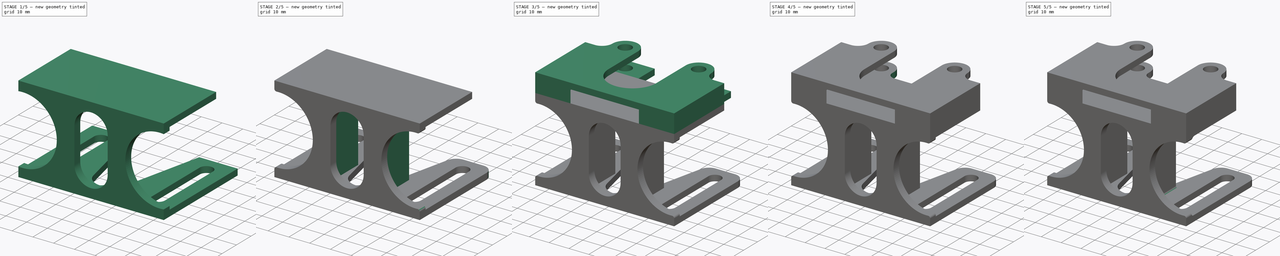
[diagram: build sequence overview — one tinted view per stage of 5, left to right]
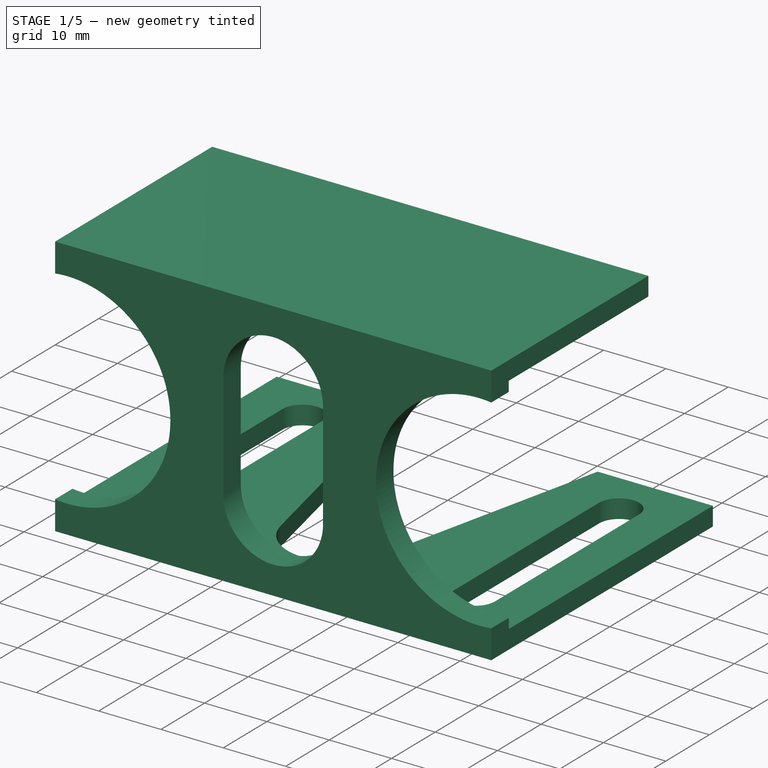
[diagram: stage 1 of 5 — iso view after this stage's code; geometry added in this stage tinted green]
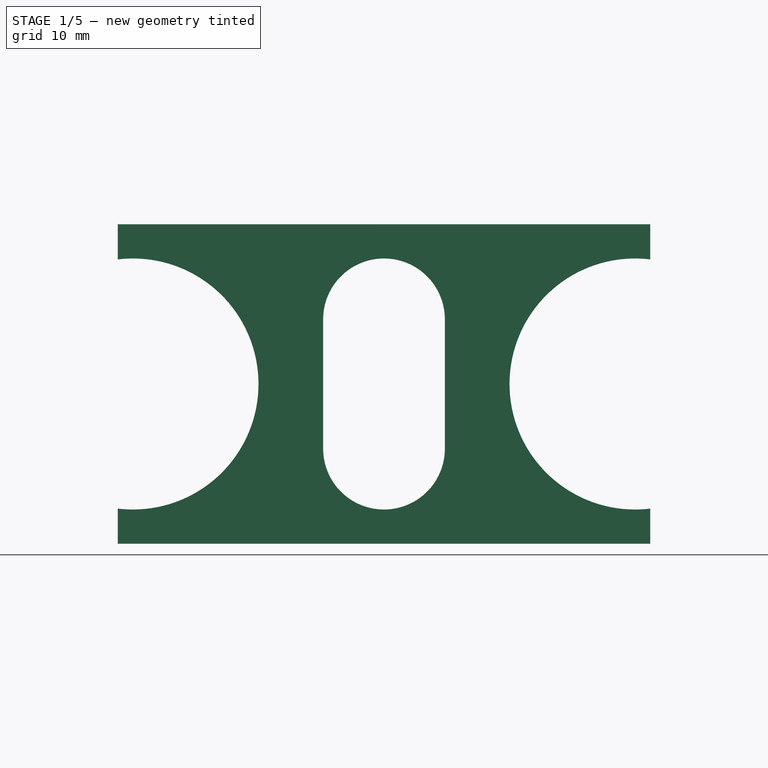
[diagram: stage 1 of 5 — front view after this stage's code; geometry added in this stage tinted green]
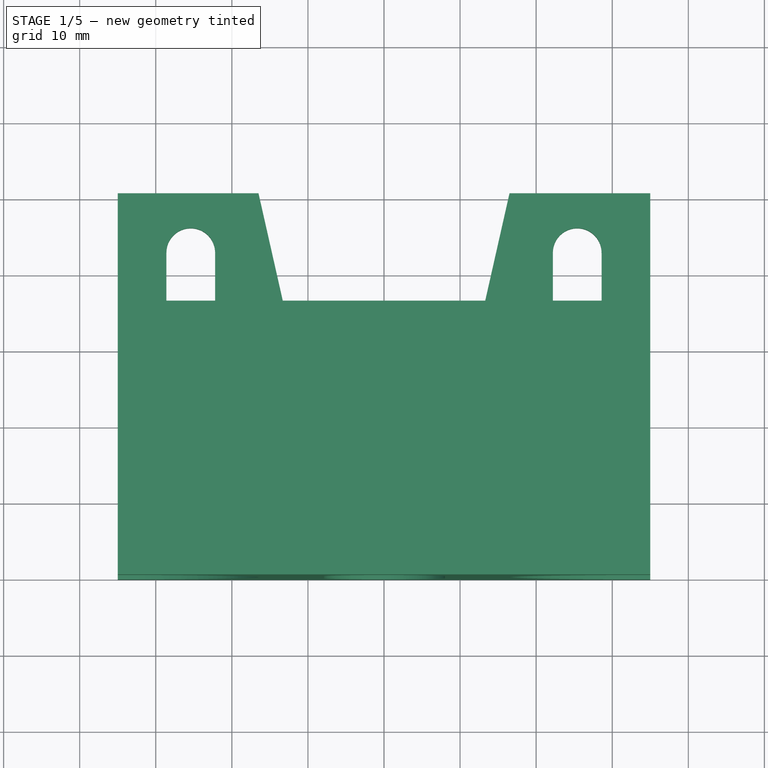
[diagram: stage 1 of 5 — top view after this stage's code; geometry added in this stage tinted green]
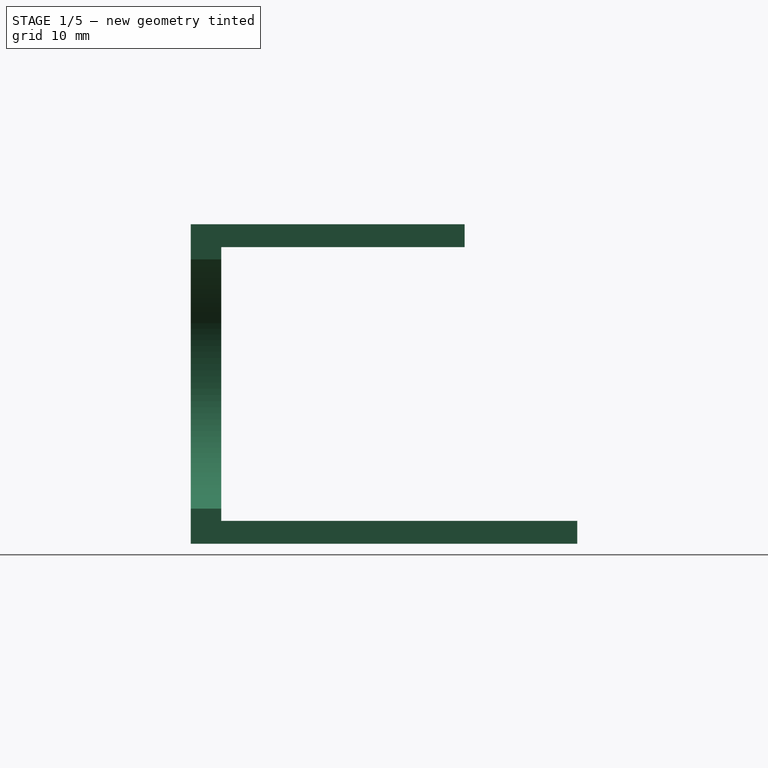
[diagram: stage 1 of 5 — right view after this stage's code; geometry added in this stage tinted green]
FCSTD DOCUMENT  (FreeCAD 0.19R24291 (Git))
Label: Stand_PS3Eye
Comment: Stand for PS3 Camera Case
License: Creative Commons Attribution-NonCommercial-ShareAlike
LicenseURL: http://creativecommons.org/licenses/by-nc-sa/4.0/
objects: Sketcher::SketchObject×9, PartDesign::Fillet×7, PartDesign::Pad×5, PartDesign::Pocket×4, PartDesign::CoordinateSystem×2, PartDesign::Body×1
note: 44 computed .brp shape members not serialized (recipe doc carries the construction recipe); baked Part::Feature solids carry a one-line shape summary decoded from their .brp

FEATURE [Sketcher::SketchObject] Sketch
  FullyConstrained = true
  MapMode = 5
  Placement = pos=(0,0,0) rot=(0.57735,0.57735,0.57735;2.0944rad)
  Support = -> [YZ_Plane]
  sketch-geometry (8):
    g0: LineSegment StartX=30.8 StartY=-18 StartZ=0 EndX=30.8 EndY=-21 EndZ=0
    g1: LineSegment StartX=30.8 StartY=-21 StartZ=0 EndX=-20 EndY=-21 EndZ=0
    g2: LineSegment StartX=-20 StartY=-21 StartZ=0 EndX=-20 EndY=21 EndZ=0
    g3: LineSegment StartX=-20 StartY=21 StartZ=0 EndX=16 EndY=21 EndZ=0
    g4: LineSegment StartX=16 StartY=21 StartZ=0 EndX=16 EndY=18 EndZ=0
    g5: LineSegment StartX=16 StartY=18 StartZ=0 EndX=-16 EndY=18 EndZ=0
    g6: LineSegment StartX=-16 StartY=18 StartZ=0 EndX=-16 EndY=-18 EndZ=0
    g7: LineSegment StartX=-16 StartY=-18 StartZ=0 EndX=30.8 EndY=-18 EndZ=0
  constraints (22):
    c: Vertical(g0)
    c: Coincident(g0,g1)
    c: Horizontal(g1)
    c: Coincident(g1,g2)
    c: Vertical(g2)
    c: Coincident(g2,g3)
    c: Horizontal(g3)
    c: Coincident(g3,g4)
    c: Vertical(g4)
    c: Coincident(g4,g5)
    c: Coincident(g5,g6)
    c: Coincident(g6,g7)
    c: Coincident(g7,g0)
    c: Horizontal(g7)
    c: Distance(g0) = 3
    c: Distance(g4) = 3
    c: DistanceX(g2,g5) = 4
    c: Distance(g5) = 32
    c: Distance(g2) = 42
    c: Distance(g1) = 50.8
    c: Symmetric(g5,g6,g-1)
    c: Symmetric(g4,g5,g-2)
FEATURE [PartDesign::Pad] Pad
  Direction = (1,1,1)
  Length = 70
  Length2 = 100
  Midplane = true
  Placement = pos=(0,0,0) rot=(0.57735,0.57735,0.57735;2.0944rad)
  Profile = -> Sketch
  Type = 0
FEATURE [Sketcher::SketchObject] Sketch001
  ExternalGeometry = -> [Pad]
  FullyConstrained = true
  MapMode = 5
  Placement = pos=(-8.8e-15,-20,4.4e-15) rot=(-0.57735,-0.57735,0.57735;4.18879rad)
  Support = -> [Pad]
  sketch-geometry (8):
    g0: Circle CenterX=0 CenterY=33 CenterZ=0 NormalX=0 NormalY=0 NormalZ=1 AngleXU=0 Radius=16.5
    g1: Circle CenterX=0 CenterY=-33 CenterZ=0 NormalX=0 NormalY=0 NormalZ=1 AngleXU=0 Radius=16.5
    g2: ArcOfCircle CenterX=-8.5 CenterY=0 CenterZ=0 NormalX=0 NormalY=0 NormalZ=1 AngleXU=0 Radius=8 StartAngle=1.5708 EndAngle=4.71239
    g3: ArcOfCircle CenterX=8.5 CenterY=1e-16 CenterZ=0 NormalX=0 NormalY=0 NormalZ=1 AngleXU=0 Radius=8 StartAngle=4.71239 EndAngle=7.85398
    g4: LineSegment StartX=-8.5 StartY=-8 StartZ=0 EndX=8.5 EndY=-8 EndZ=0
    g5: LineSegment StartX=-8.5 StartY=8 StartZ=0 EndX=8.5 EndY=8 EndZ=0
    g6: LineSegment StartX=-16.5 StartY=2.21473e-05 StartZ=0 EndX=-16.5 EndY=10 EndZ=0
    g7: LineSegment StartX=16.5 StartY=0 StartZ=0 EndX=16.5 EndY=10 EndZ=0
  constraints (22):
    c: Diameter(g0) = 33
    c: Diameter(g1) = 33
    c: PointOnObject(g1,g-2)
    c: Tangent(g2,g5) = 1.5708
    c: Tangent(g2,g4) = -1.5708
    c: Tangent(g4,g3) = -1.5708
    c: Tangent(g5,g3) = 1.5708
    c: Horizontal(g4)
    c: PointOnObject(g2,g-1)
    c: Symmetric(g2,g3,g-2)
    c: PointOnObject(g6,g2)
    c: Vertical(g6)
    c: Tangent(g6,g2)
    c: PointOnObject(g7,g3)
    c: Vertical(g7)
    c: PointOnObject(g7,g-1)
    c: Diameter(g3) = 16
    c: DistanceX(g6,g7) = 33
    c: Distance(g-1,g1) = 33
    c: Symmetric(g0,g1,g-1)
    c: Distance(g7) = 10
    c: Distance(g6) = 10
FEATURE [PartDesign::Pocket] Pocket
  BaseFeature = -> Pad
  Length = 5
  Length2 = 100
  Placement = pos=(0,0,0) rot=(0.57735,0.57735,0.57735;2.0944rad)
  Profile = -> Sketch001
  Type = 0
FEATURE [Sketcher::SketchObject] Sketch002
  ExternalGeometry = -> [Pocket]
  FullyConstrained = true
  MapMode = 5
  Placement = pos=(5.9e-15,-9.2e-15,-21) rot=(0.707107,0.707107,0;3.14159rad)
  Support = -> [Pocket]
  sketch-geometry (13):
    g0: ArcOfCircle CenterX=-10 CenterY=-25.4 CenterZ=0 NormalX=0 NormalY=0 NormalZ=1 AngleXU=0 Radius=3.2 StartAngle=1.5708 EndAngle=4.71239
    g1: ArcOfCircle CenterX=23 CenterY=-25.4 CenterZ=0 NormalX=0 NormalY=0 NormalZ=1 AngleXU=0 Radius=3.2 StartAngle=4.71239 EndAngle=7.85398
    g2: LineSegment StartX=-10 StartY=-28.6 StartZ=0 EndX=23 EndY=-28.6 EndZ=0
    g3: LineSegment StartX=-10 StartY=-22.2 StartZ=0 EndX=23 EndY=-22.2 EndZ=0
    g4: ArcOfCircle CenterX=-10 CenterY=25.4 CenterZ=0 NormalX=0 NormalY=0 NormalZ=1 AngleXU=0 Radius=3.2 StartAngle=1.5708 EndAngle=4.71239
    g5: ArcOfCircle CenterX=23 CenterY=25.4 CenterZ=0 NormalX=0 NormalY=0 NormalZ=1 AngleXU=0 Radius=3.2 StartAngle=4.71239 EndAngle=7.85398
    g6: LineSegment StartX=-10 StartY=22.2 StartZ=0 EndX=23 EndY=22.2 EndZ=0
    g7: LineSegment StartX=-10 StartY=28.6 StartZ=0 EndX=23 EndY=28.6 EndZ=0
    g8: ArcOfCircle CenterX=-4.9982 CenterY=0 CenterZ=0 NormalX=0 NormalY=0 NormalZ=1 AngleXU=0 Radius=8.2018 StartAngle=1.79309 EndAngle=4.4901
    g9: ArcOfCircle CenterX=34.5294 CenterY=-1.7e-15 CenterZ=0 NormalX=0 NormalY=0 NormalZ=1 AngleXU=0 Radius=16.9162 StartAngle=4.4901 EndAngle=8.07627
    g10: LineSegment StartX=-6.8064 StartY=-8 StartZ=0 EndX=30.8 EndY=-16.5 EndZ=0
    g11: LineSegment StartX=-6.8064 StartY=8 StartZ=0 EndX=30.8 EndY=16.5 EndZ=0
    g12: LineSegment StartX=-13.2 StartY=25.4 StartZ=0 EndX=-13.2 EndY=-25.4 EndZ=0
  constraints (33):
    c: Tangent(g0,g3) = 1.5708
    c: Tangent(g0,g2) = -1.5708
    c: Tangent(g2,g1) = -1.5708
    c: Tangent(g3,g1) = 1.5708
    c: Horizontal(g2)
    c: Equal(g0,g1)
    c: Tangent(g4,g7) = 1.5708
    c: Tangent(g4,g6) = -1.5708
    c: Tangent(g6,g5) = -1.5708
    c: Tangent(g7,g5) = 1.5708
    c: Horizontal(g6)
    c: Equal(g4,g5)
    c: DistanceY(g0,g4) = 50.8
    c: Symmetric(g4,g0,g-1)
    c: Distance(g5,g5) = 6.4
    c: Distance(g1,g1) = 6.4
    c: Distance(g6) = 33
    c: Distance(g3) = 33
    c: DistanceX(g-3,g4) = 10
    c: Tangent(g8,g11) = 1.5708
    c: Tangent(g8,g10) = -1.5708
    c: Tangent(g10,g9) = -1.5708
    c: Tangent(g11,g9) = 1.5708
    c: PointOnObject(g8,g-1)
    c: Vertical(g8,g8)
    c: PointOnObject(g12,g4)
    c: PointOnObject(g12,g0)
    c: Vertical(g12)
    c: Tangent(g12,g4)
    c: Tangent(g8,g12)
    c: PointOnObject(g9,g-4)
    c: Distance(g8,g8) = 16
    c: Distance(g9,g9) = 33
FEATURE [PartDesign::Pocket] Pocket001
  BaseFeature = -> Pocket
  Length = 5
  Length2 = 100
  Placement = pos=(0,0,0) rot=(0.57735,0.57735,0.57735;2.0944rad)
  Profile = -> Sketch002
  Type = 0
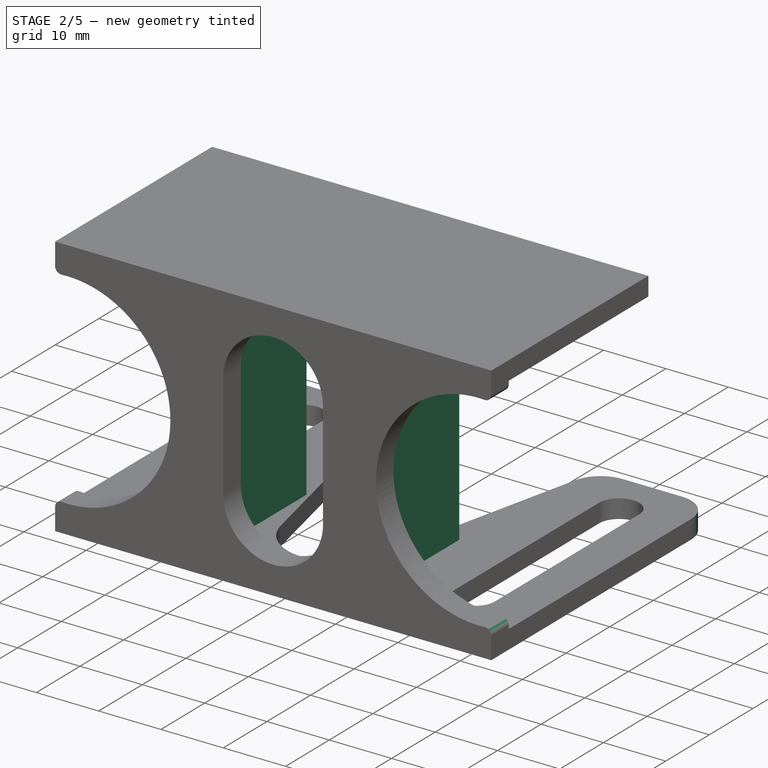
[diagram: stage 2 of 5 — iso view after this stage's code; geometry added in this stage tinted green]
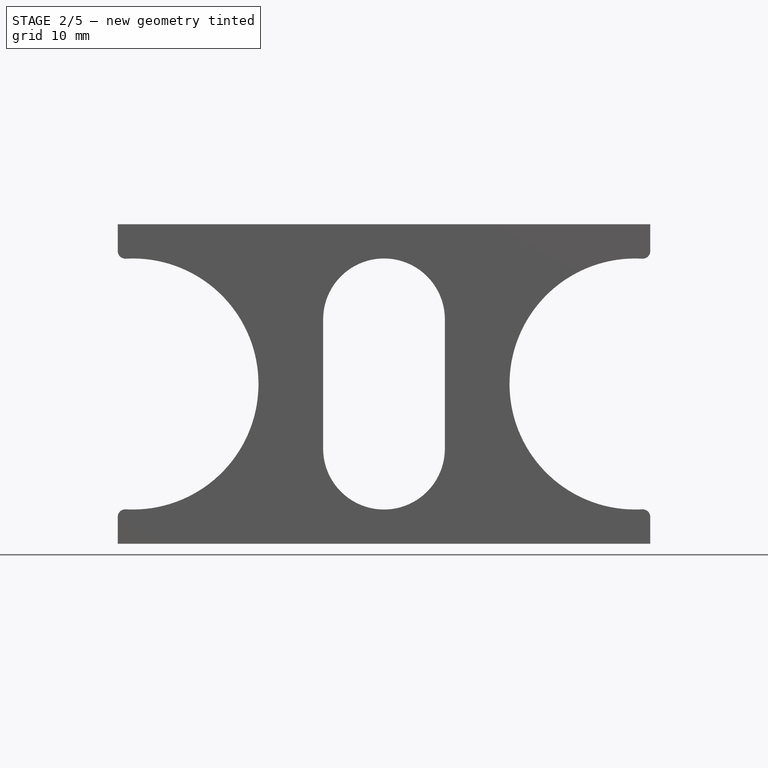
[diagram: stage 2 of 5 — front view after this stage's code; geometry added in this stage tinted green]
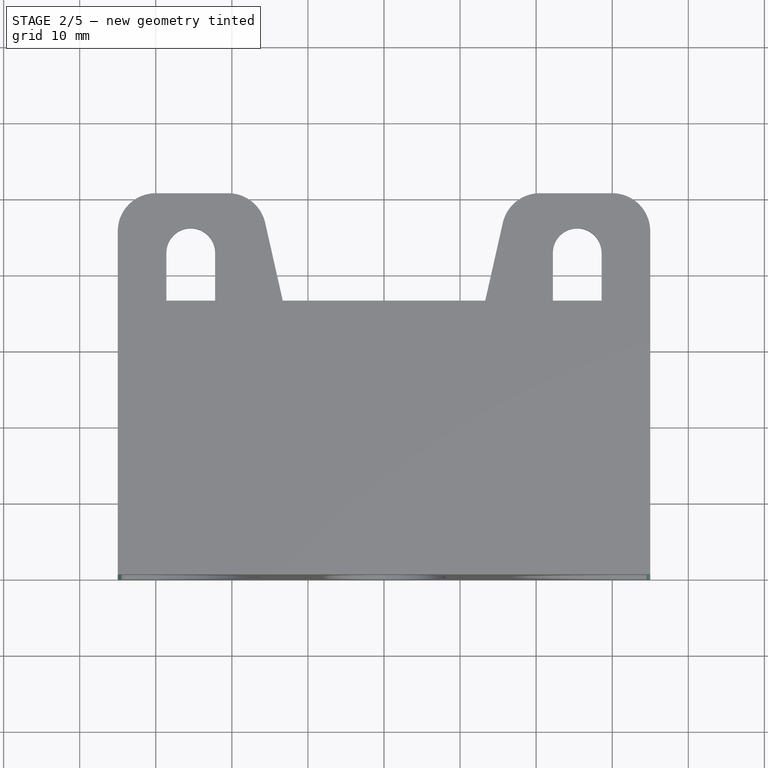
[diagram: stage 2 of 5 — top view after this stage's code; geometry added in this stage tinted green]
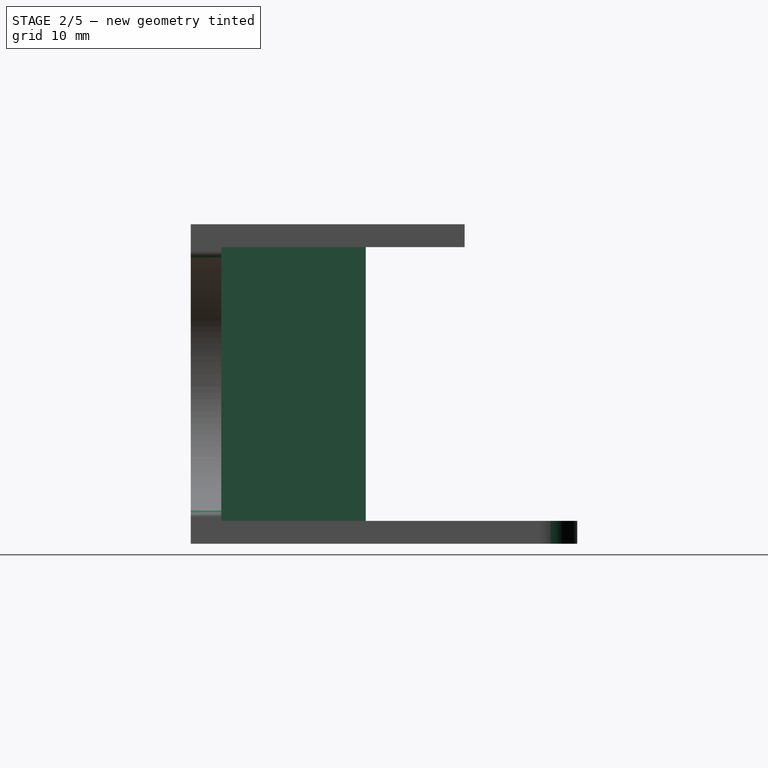
[diagram: stage 2 of 5 — right view after this stage's code; geometry added in this stage tinted green]
FEATURE [PartDesign::Fillet] Fillet
  Base = -> Pocket001 [Edge81,Edge79,Edge7,Edge64]
  BaseFeature = -> Pocket001
  Placement = pos=(0,0,0) rot=(0.57735,0.57735,0.57735;2.0944rad)
  Radius = 1
  SupportTransform = false
FEATURE [PartDesign::Fillet] Fillet001
  Base = -> Fillet [Edge86,Edge93,Edge57,Edge5]
  BaseFeature = -> Fillet
  Placement = pos=(0,0,0) rot=(0.57735,0.57735,0.57735;2.0944rad)
  Radius = 5
  SupportTransform = false
FEATURE [Sketcher::SketchObject] Sketch004
  ExternalGeometry = -> [Fillet001]
  FullyConstrained = true
  MapMode = 5
  Placement = pos=(-7e-15,-16,3.5e-15) rot=(0.57735,0.57735,0.57735;4.18879rad)
  Support = -> [Fillet001]
  sketch-geometry (11):
    g0: LineSegment StartX=-18 StartY=-10.75 StartZ=0 EndX=18 EndY=-10.75 EndZ=0
    g1: LineSegment StartX=18 StartY=-10.75 StartZ=0 EndX=18 EndY=-13.75 EndZ=0
    g2: LineSegment StartX=18 StartY=-13.75 StartZ=0 EndX=-18 EndY=-13.75 EndZ=0
    g3: LineSegment StartX=-18 StartY=-13.75 StartZ=0 EndX=-18 EndY=-10.75 EndZ=0
    g4: LineSegment StartX=-18 StartY=13.75 StartZ=0 EndX=18 EndY=13.75 EndZ=0
    g5: LineSegment StartX=18 StartY=13.75 StartZ=0 EndX=18 EndY=10.75 EndZ=0
    g6: LineSegment StartX=18 StartY=10.75 StartZ=0 EndX=-18 EndY=10.75 EndZ=0
    g7: LineSegment StartX=-18 StartY=10.75 StartZ=0 EndX=-18 EndY=13.75 EndZ=0
    g8: LineSegment StartX=18 StartY=12.25 StartZ=0 EndX=-18 EndY=12.25 EndZ=0
    g9: GeomPoint X=0 Y=16.5 Z=0
    g10: GeomPoint X=0 Y=8 Z=0
  constraints (29):
    c: Coincident(g0,g1)
    c: Coincident(g1,g2)
    c: Coincident(g2,g3)
    c: Coincident(g3,g0)
    c: Horizontal(g0)
    c: Horizontal(g2)
    c: Vertical(g1)
    c: Vertical(g3)
    c: Distance(g1) = 3
    c: Coincident(g4,g5)
    c: Coincident(g5,g6)
    c: Coincident(g6,g7)
    c: Coincident(g7,g4)
    c: Horizontal(g4)
    c: Horizontal(g6)
    c: Vertical(g5)
    c: Vertical(g7)
    c: Distance(g5) = 3
    c: PointOnObject(g0,g-3)
    c: Symmetric(g0,g5,g-1)
    c: PointOnObject(g8,g5)
    c: PointOnObject(g8,g7)
    c: Symmetric(g4,g5,g8)
    c: PointOnObject(g9,g-4)
    c: PointOnObject(g10,g-5)
    c: PointOnObject(g9,g-2)
    c: Symmetric(g9,g10,g8)
    c: PointOnObject(g0,g-6)
    c: PointOnObject(g8,g-6)
FEATURE [PartDesign::CoordinateSystem] LCS_Baseplate_Right
  AttacherType = Attacher::AttachEngine3D
  MapMode = 45
  Placement = pos=(25.4,28.5372,-21) rot=(0,0,1;1.5708rad)
FEATURE [PartDesign::CoordinateSystem] LCS_Top_Mount
  AttacherType = Attacher::AttachEngine3D
  MapMode = 45
  Placement = pos=(-3.6e-14,-2,21) rot=(0,0,1;1.5708rad)
FEATURE [PartDesign::Pad] Pad001
  BaseFeature = -> Fillet001
  Direction = (1,1,1)
  Length = 19
  Length2 = 100
  Placement = pos=(0,0,0) rot=(0.57735,0.57735,0.57735;2.0944rad)
  Profile = -> Sketch004
  Type = 0
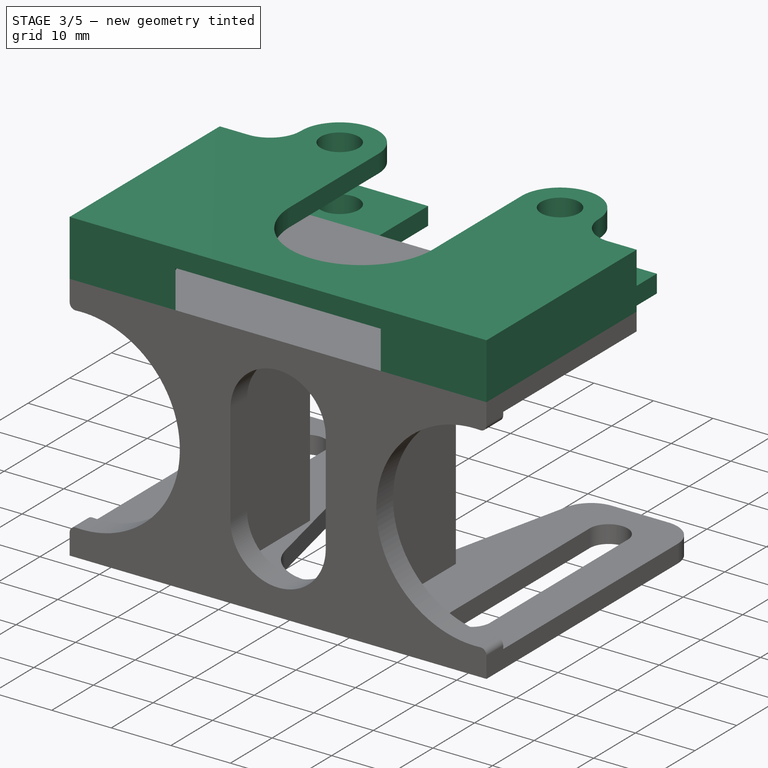
[diagram: stage 3 of 5 — iso view after this stage's code; geometry added in this stage tinted green]
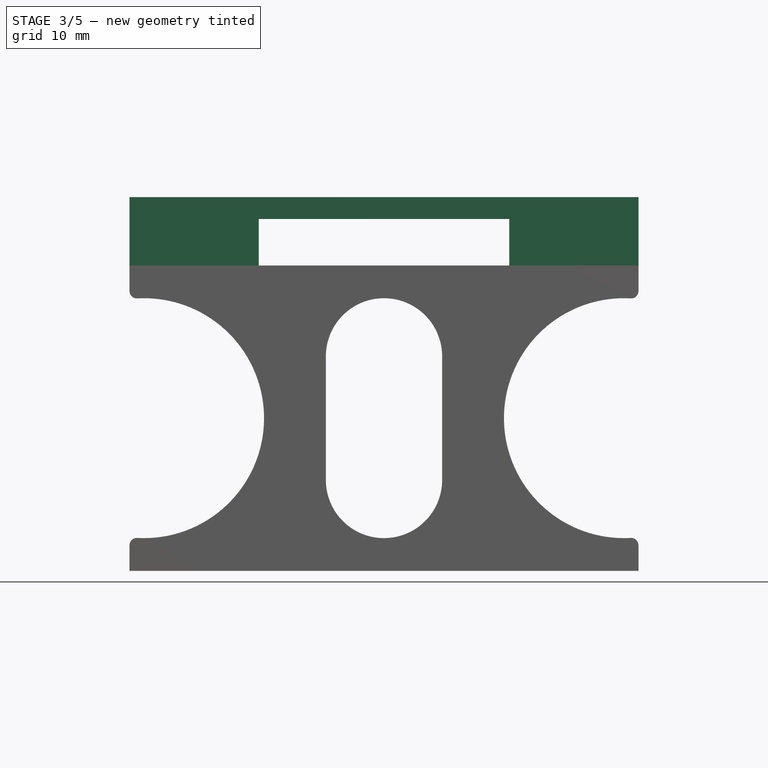
[diagram: stage 3 of 5 — front view after this stage's code; geometry added in this stage tinted green]
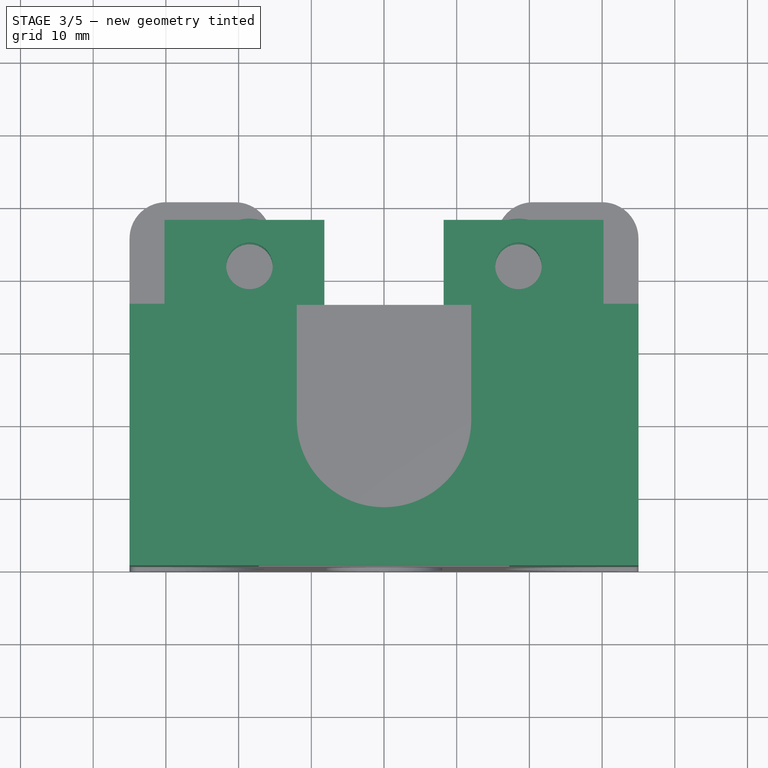
[diagram: stage 3 of 5 — top view after this stage's code; geometry added in this stage tinted green]
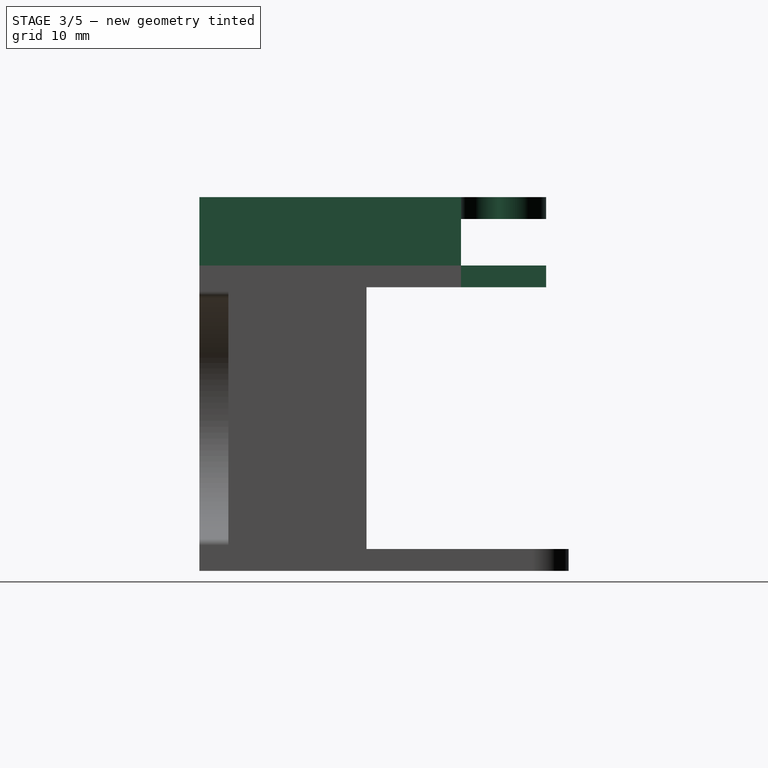
[diagram: stage 3 of 5 — right view after this stage's code; geometry added in this stage tinted green]
FEATURE [Sketcher::SketchObject] Sketch005
  ExternalGeometry = -> [Pad001]
  FullyConstrained = true
  MapMode = 5
  Placement = pos=(-2.9e-14,1.9e-14,21) rot=(0,0,-1;1.5708rad)
  sketch-geometry (10):
    g0: ArcOfCircle CenterX=0 CenterY=0 CenterZ=0 NormalX=0 NormalY=0 NormalZ=1 AngleXU=0 Radius=26.4 StartAngle=0.711205 EndAngle=1.5708
    g1: LineSegment StartX=20 StartY=17.2325 StartZ=0 EndX=20 EndY=35 EndZ=0
    g2: LineSegment StartX=20 StartY=35 StartZ=0 EndX=-16 EndY=35 EndZ=0
    g3: LineSegment StartX=-16 StartY=35 StartZ=0 EndX=-16 EndY=26.4 EndZ=0
    g4: LineSegment StartX=-16 StartY=26.4 StartZ=0 EndX=1.8e-15 EndY=26.4 EndZ=0
    g5: ArcOfCircle CenterX=0 CenterY=0 CenterZ=0 NormalX=0 NormalY=0 NormalZ=1 AngleXU=0 Radius=26.4 StartAngle=4.71239 EndAngle=5.57198
    g6: LineSegment StartX=20 StartY=-17.2325 StartZ=0 EndX=20 EndY=-35 EndZ=0
    g7: LineSegment StartX=20 StartY=-35 StartZ=0 EndX=-16 EndY=-35 EndZ=0
    g8: LineSegment StartX=-4.8e-15 StartY=-26.4 StartZ=0 EndX=-16 EndY=-26.4 EndZ=0
    g9: LineSegment StartX=-16 StartY=-26.4 StartZ=0 EndX=-16 EndY=-35 EndZ=0
  constraints (28):
    c: Coincident(g0,g-1)
    c: Coincident(g1,g0)
    c: Coincident(g2,g1)
    c: Coincident(g3,g2)
    c: Radius(g0) = 26.4
    c: PointOnObject(g0,g-2)
    c: Coincident(g4,g3)
    c: Coincident(g4,g0)
    c: Horizontal(g4)
    c: PointOnObject(g3,g-5)
    c: PointOnObject(g2,g-5)
    c: PointOnObject(g1,g-4)
    c: PointOnObject(g2,g-3)
    c: PointOnObject(g1,g-3)
    c: PointOnObject(g0,g-4)
    c: Coincident(g5,g0)
    c: PointOnObject(g5,g-2)
    c: PointOnObject(g5,g-4)
    c: Radius(g5) = 26.4
    c: Coincident(g6,g5)
    c: Coincident(g6,g-4)
    c: Coincident(g7,g6)
    c: Coincident(g7,g-5)
    c: Coincident(g8,g5)
    c: PointOnObject(g8,g-5)
    c: Horizontal(g8)
    c: Coincident(g9,g8)
    c: Coincident(g9,g7)
FEATURE [PartDesign::Pad] Pad002
  BaseFeature = -> Pad001
  Direction = (1,1,1)
  Length = 6.4
  Length2 = 100
  Placement = pos=(0,0,0) rot=(0.57735,0.57735,0.57735;2.0944rad)
  Profile = -> Sketch005
  Type = 0
FEATURE [Sketcher::SketchObject] Sketch006
  ExternalGeometry = -> [Pad002]
  FullyConstrained = true
  MapMode = 5
  Placement = pos=(-2.65e-14,2.82e-14,27.4) rot=(0,0,-1;1.5708rad)
  Support = -> [Pad002]
  sketch-geometry (14):
    g0: Circle CenterX=-21.2 CenterY=18.5 CenterZ=0 NormalX=0 NormalY=0 NormalZ=1 AngleXU=0 Radius=3.2
    g1: Circle CenterX=-21.2 CenterY=-18.5 CenterZ=0 NormalX=0 NormalY=0 NormalZ=1 AngleXU=0 Radius=3.2
    g2: ArcOfCircle CenterX=-21.2 CenterY=18.5 CenterZ=0 NormalX=0 NormalY=0 NormalZ=1 AngleXU=0 Radius=6.5 StartAngle=1.5708 EndAngle=4.71239
    g3: ArcOfCircle CenterX=-21.2 CenterY=-18.5 CenterZ=0 NormalX=0 NormalY=0 NormalZ=1 AngleXU=0 Radius=6.5 StartAngle=1.5708 EndAngle=4.71239
    g4: LineSegment StartX=-21.2 StartY=12 StartZ=0 EndX=3.6e-15 EndY=12 EndZ=0
    g5: LineSegment StartX=-21.2 StartY=-12 StartZ=0 EndX=-3.6e-15 EndY=-12 EndZ=0
    g6: ArcOfCircle CenterX=0 CenterY=0 CenterZ=0 NormalX=0 NormalY=0 NormalZ=1 AngleXU=0 Radius=12 StartAngle=4.71239 EndAngle=7.85398
    g7: LineSegment StartX=-16 StartY=-35 StartZ=0 EndX=20 EndY=-35 EndZ=0
    g8: LineSegment StartX=20 StartY=-35 StartZ=0 EndX=20 EndY=35 EndZ=0
    g9: LineSegment StartX=20 StartY=35 StartZ=0 EndX=-16 EndY=35 EndZ=0
    g10: ArcOfCircle CenterX=-21.2 CenterY=-30.2 CenterZ=0 NormalX=0 NormalY=0 NormalZ=1 AngleXU=0 Radius=5.2 StartAngle=6.28319 EndAngle=7.85398
    g11: LineSegment StartX=-16 StartY=-30.2 StartZ=0 EndX=-16 EndY=-35 EndZ=0
    g12: ArcOfCircle CenterX=-21.2 CenterY=30.2 CenterZ=0 NormalX=0 NormalY=0 NormalZ=1 AngleXU=0 Radius=5.2 StartAngle=4.71239 EndAngle=6.28318
    g13: LineSegment StartX=-16 StartY=30.2 StartZ=0 EndX=-16 EndY=35 EndZ=0
  constraints (40):
    c: Radius(g0) = 3.2
    c: Radius(g1) = 3.2
    c: Radius(g2) = 6.5
    c: Radius(g3) = 6.5
    c: PointOnObject(g4,g-2)
    c: PointOnObject(g5,g-2)
    c: Coincident(g6,g4)
    c: Coincident(g6,g5)
    c: Horizontal(g5)
    c: Horizontal(g4)
    c: Coincident(g4,g2)
    c: Coincident(g5,g3)
    c: DistanceY(g3,g2) = 24
    c: Coincident(g6,g-1)
    c: Vertical(g2,g2)
    c: Coincident(g0,g2)
    c: Coincident(g1,g3)
    c: Vertical(g3,g3)
    c: Vertical(g3,g1)
    c: Distance(g1,g-3) = 5.2
    c: Distance(g0,g-3) = 5.2
    c: Vertical(g2,g0)
    c: Coincident(g7,g-4)
    c: Coincident(g8,g7)
    c: Coincident(g8,g-5)
    c: Coincident(g9,g8)
    c: Coincident(g9,g-5)
    c: Coincident(g10,g3)
    c: Vertical(g3,g10)
    c: Tangent(g10,g-3)
    c: Vertical(g10,g-3)
    c: Coincident(g11,g10)
    c: Coincident(g11,g7)
    c: Coincident(g7,g-4)
    c: Coincident(g12,g2)
    c: PointOnObject(g12,g-3)
    c: Tangent(g12,g-3)
    c: Coincident(g13,g12)
    c: Coincident(g13,g9)
    c: Vertical(g12,g2)
FEATURE [PartDesign::Pad] Pad003
  BaseFeature = -> Pad002
  Direction = (1,1,1)
  Length = 3
  Length2 = 100
  Placement = pos=(0,0,0) rot=(0.57735,0.57735,0.57735;2.0944rad)
  Profile = -> Sketch006
  Type = 0
FEATURE [Sketcher::SketchObject] Sketch008
  ExternalGeometry = -> [Pad003]
  FullyConstrained = true
  MapMode = 5
  Placement = pos=(8.8e-15,16,-3.5e-15) rot=(0.57735,0.57735,0.57735;4.18879rad)
  Support = -> [Pad003]
  sketch-geometry (8):
    g0: LineSegment StartX=18 StartY=30.2 StartZ=0 EndX=21 EndY=30.2 EndZ=0
    g1: LineSegment StartX=21 StartY=30.2 StartZ=0 EndX=21 EndY=8.2 EndZ=0
    g2: LineSegment StartX=21 StartY=8.2 StartZ=0 EndX=18 EndY=8.2 EndZ=0
    g3: LineSegment StartX=18 StartY=8.2 StartZ=0 EndX=18 EndY=30.2 EndZ=0
    g4: LineSegment StartX=18 StartY=-8.2 StartZ=0 EndX=21 EndY=-8.2 EndZ=0
    g5: LineSegment StartX=21 StartY=-8.2 StartZ=0 EndX=21 EndY=-30.2 EndZ=0
    g6: LineSegment StartX=21 StartY=-30.2 StartZ=0 EndX=18 EndY=-30.2 EndZ=0
    g7: LineSegment StartX=18 StartY=-30.2 StartZ=0 EndX=18 EndY=-8.2 EndZ=0
  constraints (24):
    c: Coincident(g0,g1)
    c: Coincident(g1,g2)
    c: Coincident(g2,g3)
    c: Coincident(g3,g0)
    c: Horizontal(g0)
    c: Horizontal(g2)
    c: Vertical(g1)
    c: Vertical(g3)
    c: PointOnObject(g0,g-7)
    c: PointOnObject(g1,g-8)
    c: Coincident(g4,g5)
    c: Coincident(g5,g6)
    c: Coincident(g6,g7)
    c: Coincident(g7,g4)
    c: Horizontal(g4)
    c: Horizontal(g6)
    c: Vertical(g5)
    c: Vertical(g7)
    c: PointOnObject(g4,g-7)
    c: PointOnObject(g5,g-8)
    c: Horizontal(g5,g-6)
    c: DistanceY(g4,g-9) = -3.8
    c: DistanceY(g1,g-4) = 3.8
    c: Horizontal(g0,g-10)
FEATURE [PartDesign::Pad] Pad004
  BaseFeature = -> Pad003
  Direction = (1,1,1)
  Length = 11.7
  Length2 = 100
  Placement = pos=(0,0,0) rot=(0.57735,0.57735,0.57735;2.0944rad)
  Profile = -> Sketch008
  Type = 0
FEATURE [Sketcher::SketchObject] Sketch009
  ExternalGeometry = -> [Pad004]
  FullyConstrained = true
  MapMode = 5
  Placement = pos=(-7e-15,4.8e-14,21) rot=(0,0,-1;1.5708rad)
  sketch-geometry (2):
    g0: Circle CenterX=-21.2 CenterY=18.5 CenterZ=0 NormalX=0 NormalY=0 NormalZ=1 AngleXU=0 Radius=3.2
    g1: Circle CenterX=-21.2 CenterY=-18.5 CenterZ=0 NormalX=0 NormalY=0 NormalZ=1 AngleXU=0 Radius=3.2
  constraints (4):
    c: Coincident(g-3,g1)
    c: Coincident(g0,g-4)
    c: PointOnObject(g-5,g1)
    c: PointOnObject(g-6,g0)
FEATURE [PartDesign::Pocket] Pocket002
  BaseFeature = -> Pad004
  Length = 5
  Length2 = 100
  Placement = pos=(0,0,0) rot=(0.57735,0.57735,0.57735;2.0944rad)
  Profile = -> Sketch009
  Type = 0
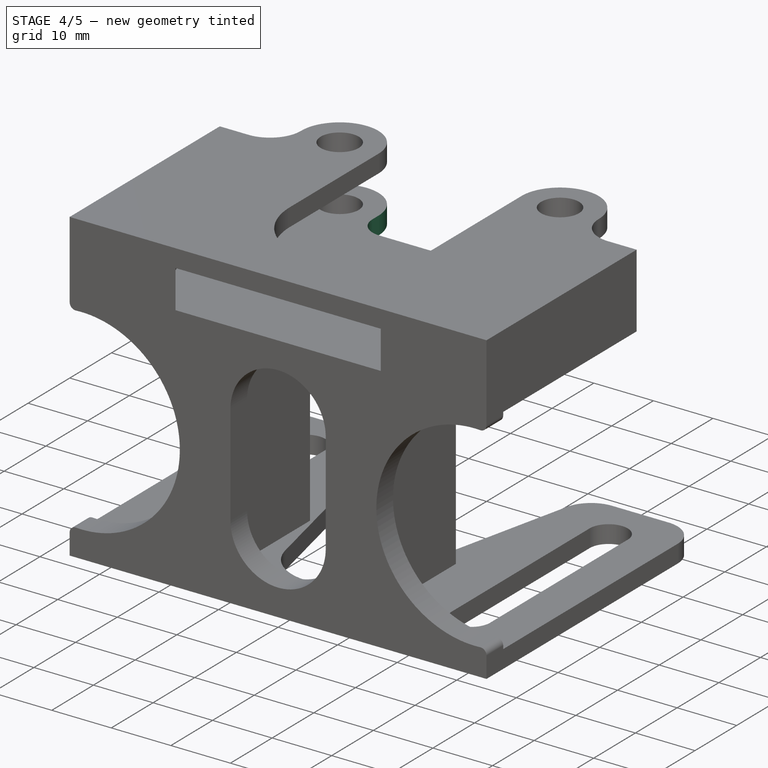
[diagram: stage 4 of 5 — iso view after this stage's code; geometry added in this stage tinted green]
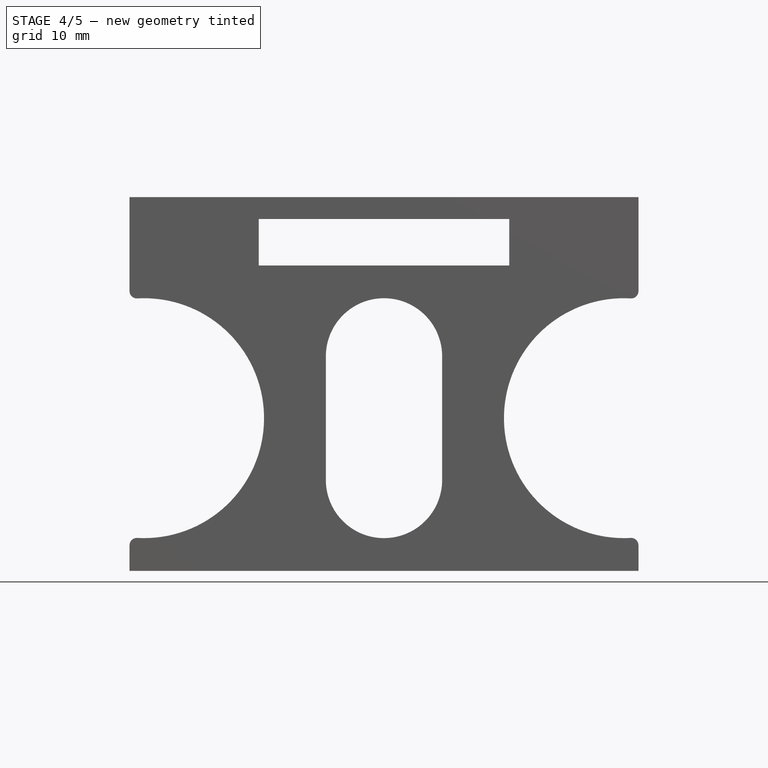
[diagram: stage 4 of 5 — front view after this stage's code; geometry added in this stage tinted green]
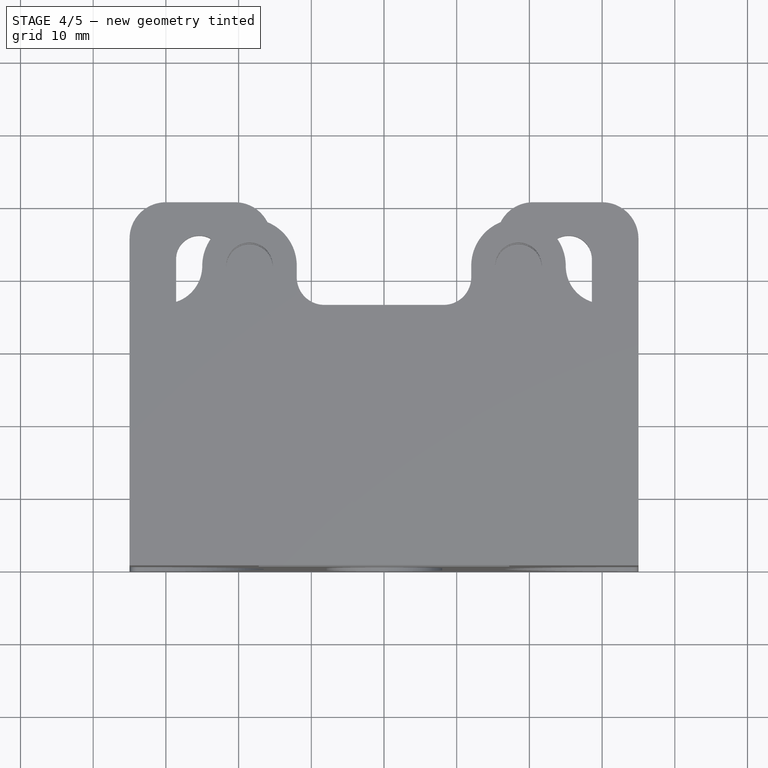
[diagram: stage 4 of 5 — top view after this stage's code; geometry added in this stage tinted green]
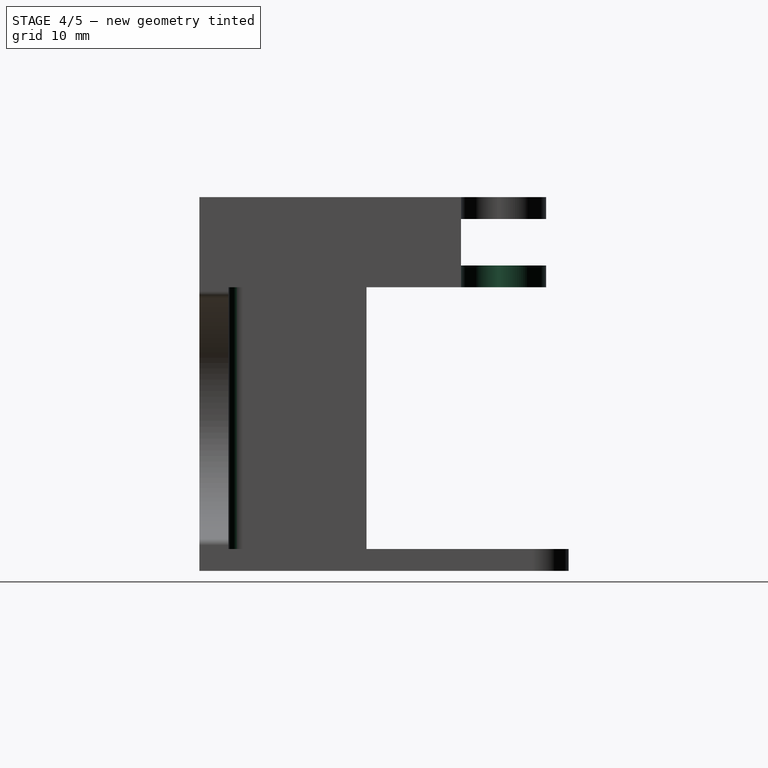
[diagram: stage 4 of 5 — right view after this stage's code; geometry added in this stage tinted green]
FEATURE [Sketcher::SketchObject] Sketch010
  ExternalGeometry = -> [Pocket002]
  FullyConstrained = true
  MapMode = 5
  Placement = pos=(-5.8e-15,3.5e-15,21) rot=(0,0,-1;1.5708rad)
  Support = -> [Pocket002]
  sketch-geometry (16):
    g0: ArcOfCircle CenterX=-21.2 CenterY=30.2 CenterZ=0 NormalX=0 NormalY=0 NormalZ=1 AngleXU=0 Radius=5.19998 StartAngle=4.71238 EndAngle=6.28319
    g1: ArcOfCircle CenterX=-19.8 CenterY=8.2 CenterZ=0 NormalX=0 NormalY=0 NormalZ=1 AngleXU=0 Radius=3.8 StartAngle=-1.8e-15 EndAngle=1.5708
    g2: ArcOfCircle CenterX=-19.8 CenterY=-8.2 CenterZ=0 NormalX=0 NormalY=0 NormalZ=1 AngleXU=0 Radius=3.8 StartAngle=4.71239 EndAngle=6.28319
    g3: ArcOfCircle CenterX=-21.2 CenterY=-30.2 CenterZ=0 NormalX=0 NormalY=0 NormalZ=1 AngleXU=0 Radius=5.2 StartAngle=-1.8e-15 EndAngle=1.5708
    g4: LineSegment StartX=-21.2 StartY=-25 StartZ=0 EndX=-27.7 EndY=-25 EndZ=0
    g5: LineSegment StartX=-27.7 StartY=-25 StartZ=0 EndX=-27.7 EndY=-30.2 EndZ=0
    g6: LineSegment StartX=-27.7 StartY=-30.2 StartZ=0 EndX=-16 EndY=-30.2 EndZ=0
    g7: LineSegment StartX=-16 StartY=-8.2 StartZ=0 EndX=-27.7 EndY=-8.2 EndZ=0
    g8: LineSegment StartX=-19.8 StartY=-12 StartZ=0 EndX=-27.7 EndY=-12 EndZ=0
    g9: LineSegment StartX=-27.7 StartY=-8.2 StartZ=0 EndX=-27.7 EndY=-12 EndZ=0
    g10: LineSegment StartX=-16 StartY=8.2 StartZ=0 EndX=-27.7 EndY=8.2 EndZ=0
    g11: LineSegment StartX=-19.8 StartY=12 StartZ=0 EndX=-27.7 EndY=12 EndZ=0
    g12: LineSegment StartX=-27.7 StartY=12 StartZ=0 EndX=-27.7 EndY=8.2 EndZ=0
    g13: LineSegment StartX=-21.2 StartY=25 StartZ=0 EndX=-27.7 EndY=25 EndZ=0
    g14: LineSegment StartX=-27.7 StartY=30.2 StartZ=0 EndX=-27.7 EndY=25 EndZ=0
    g15: LineSegment StartX=-16 StartY=30.2 StartZ=0 EndX=-27.7 EndY=30.2 EndZ=0
  constraints (42):
    c: PointOnObject(g0,g-13)
    c: Coincident(g0,g-13)
    c: Coincident(g0,g-14)
    c: PointOnObject(g1,g-9)
    c: Coincident(g1,g-11)
    c: PointOnObject(g1,g-10)
    c: Tangent(g1,g-10)
    c: PointOnObject(g2,g-3)
    c: Coincident(g2,g-4)
    c: PointOnObject(g2,g-5)
    c: Tangent(g-5,g2)
    c: PointOnObject(g3,g-7)
    c: Coincident(g3,g-8)
    c: Coincident(g3,g-7)
    c: Coincident(g4,g3)
    c: PointOnObject(g4,g-6)
    c: Horizontal(g4)
    c: Coincident(g5,g4)
    c: Coincident(g5,g-7)
    c: Coincident(g6,g5)
    c: Coincident(g6,g3)
    c: Coincident(g7,g2)
    c: Coincident(g7,g-6)
    c: Coincident(g8,g2)
    c: PointOnObject(g8,g-6)
    c: Horizontal(g8)
    c: Coincident(g9,g7)
    c: Coincident(g9,g8)
    c: Coincident(g10,g1)
    c: Coincident(g10,g-12)
    c: Coincident(g11,g1)
    c: PointOnObject(g11,g-12)
    c: Horizontal(g11)
    c: Coincident(g12,g11)
    c: Coincident(g12,g10)
    c: Coincident(g13,g0)
    c: Horizontal(g13)
    c: Coincident(g14,g-13)
    c: Coincident(g14,g13)
    c: PointOnObject(g13,g-12)
    c: Coincident(g15,g0)
    c: Coincident(g15,g14)
FEATURE [PartDesign::Pocket] Pocket003
  BaseFeature = -> Pocket002
  Length = 5
  Length2 = 100
  Placement = pos=(0,0,0) rot=(0.57735,0.57735,0.57735;2.0944rad)
  Profile = -> Sketch010
  Type = 0
FEATURE [PartDesign::Fillet] Fillet002
  Base = -> Pocket003 [Edge214,Edge215,Edge209,Edge210]
  BaseFeature = -> Pocket003
  Placement = pos=(0,0,0) rot=(0.57735,0.57735,0.57735;2.0944rad)
  Radius = 6.499
  SupportTransform = false
FEATURE [PartDesign::Fillet] Fillet003
  Base = -> Fillet002 [Edge65,Edge63,Edge75,Edge57]
  BaseFeature = -> Fillet002
  Placement = pos=(0,0,0) rot=(0.57735,0.57735,0.57735;2.0944rad)
  Radius = 2
  SupportTransform = false
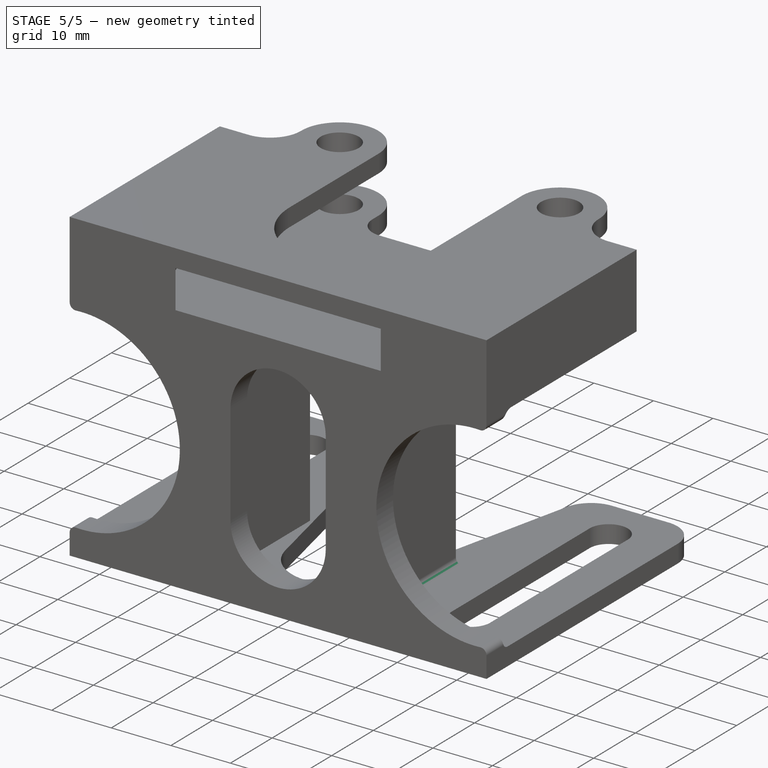
[diagram: stage 5 of 5 — iso view after this stage's code; geometry added in this stage tinted green]
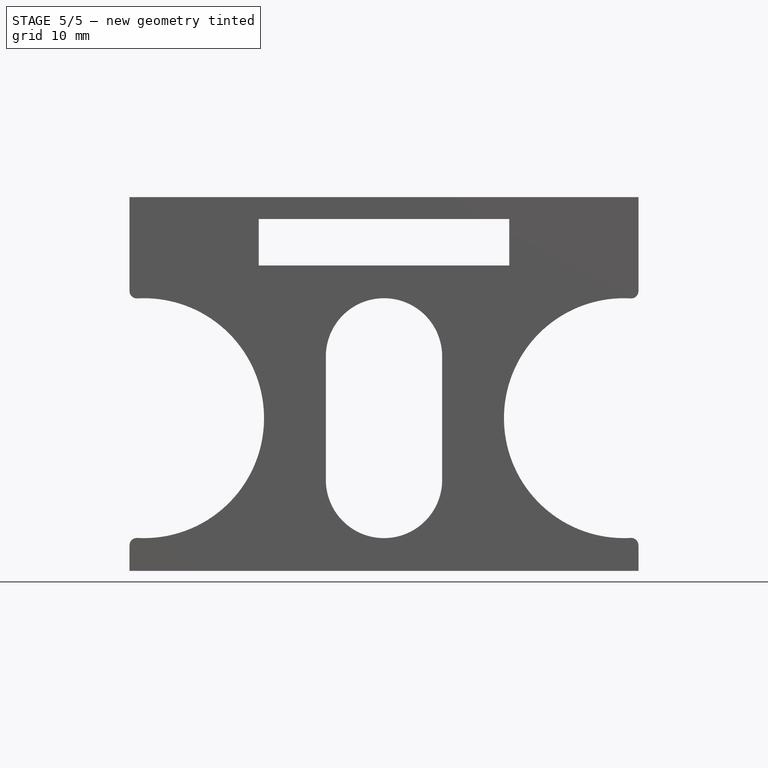
[diagram: stage 5 of 5 — front view after this stage's code; geometry added in this stage tinted green]
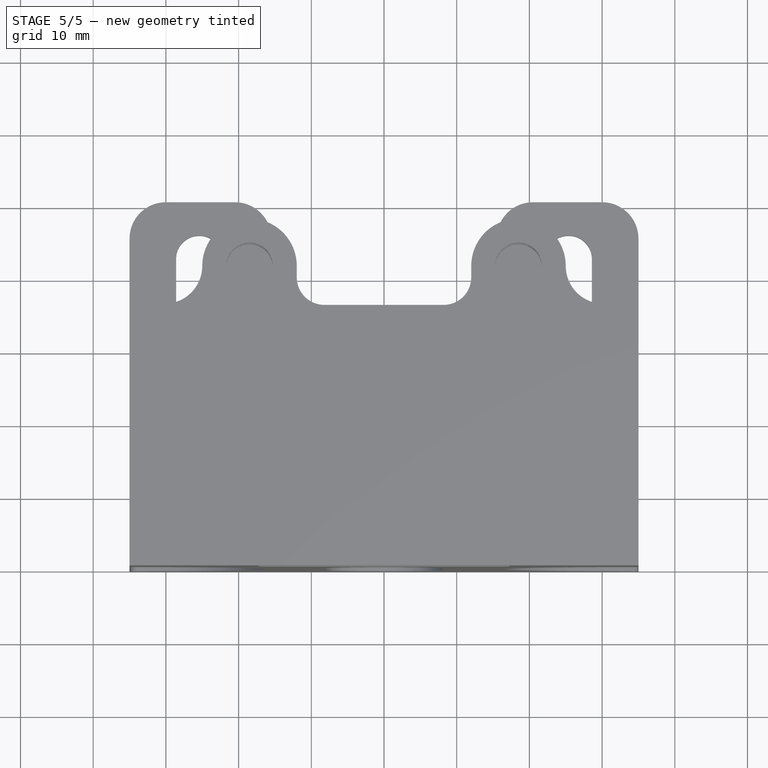
[diagram: stage 5 of 5 — top view after this stage's code; geometry added in this stage tinted green]
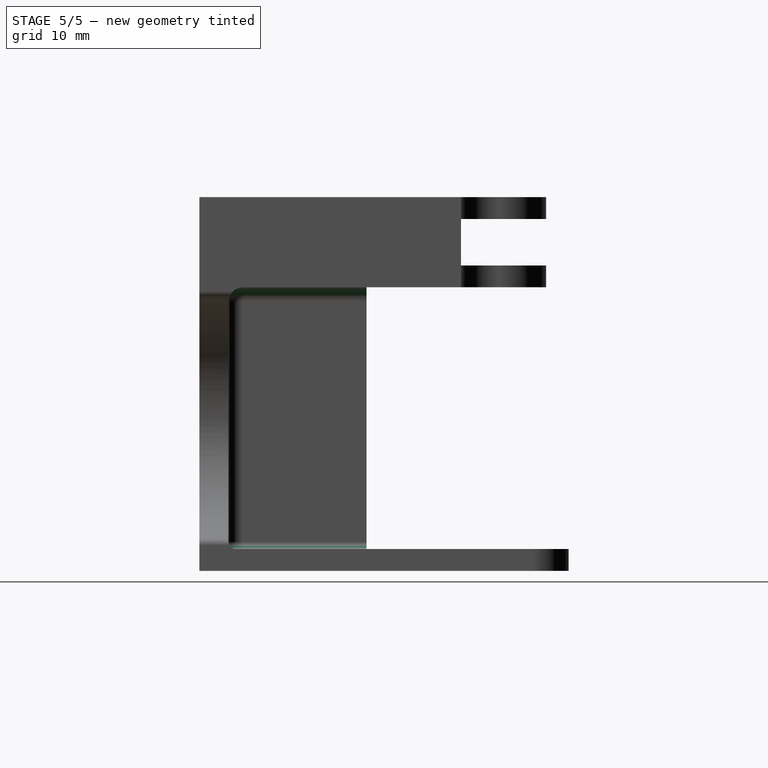
[diagram: stage 5 of 5 — right view after this stage's code; geometry added in this stage tinted green]
FEATURE [PartDesign::Fillet] Fillet004
  Base = -> Fillet003 [Edge81,Edge21]
  BaseFeature = -> Fillet003
  Placement = pos=(0,0,0) rot=(0.57735,0.57735,0.57735;2.0944rad)
  Radius = 1
  SupportTransform = false
FEATURE [PartDesign::Fillet] Fillet005
  Base = -> Fillet003 [Edge12,Edge1,Edge17]
  BaseFeature = -> Fillet003
  Placement = pos=(0,0,0) rot=(0.57735,0.57735,0.57735;2.0944rad)
  Radius = 2
  SupportTransform = false
FEATURE [PartDesign::Fillet] Fillet006
  Base = -> Fillet004 [Edge235,Edge149]
  BaseFeature = -> Fillet004
  Placement = pos=(0,0,0) rot=(0.57735,0.57735,0.57735;2.0944rad)
  Radius = 4.5
  SupportTransform = false
FEATURE [PartDesign::Body] Body  label="Stand_Camera"
  Group = -> [Sketch,Pad,Sketch001,Pocket,Sketch002,Pocket001,Fillet,Fillet001,Pad001,Sketch004,LCS_Baseplate_Right,LCS_Top_Mount,Sketch005,Pad002,Sketch006,Pad003,Sketch008,Pad004,Sketch009,Pocket002,Sketch010,Pocket003,Fillet002,Fillet003,Fillet004,Fillet005,Fillet006]
  Origin = -> Origin
  Tip = -> Fillet006
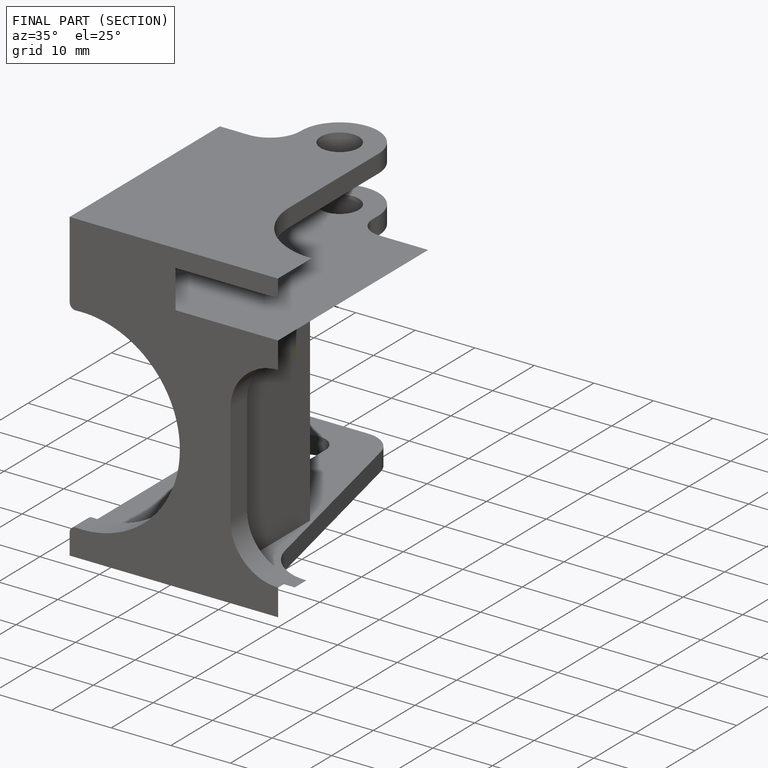
[diagram: finished part — half-section view (interior)]
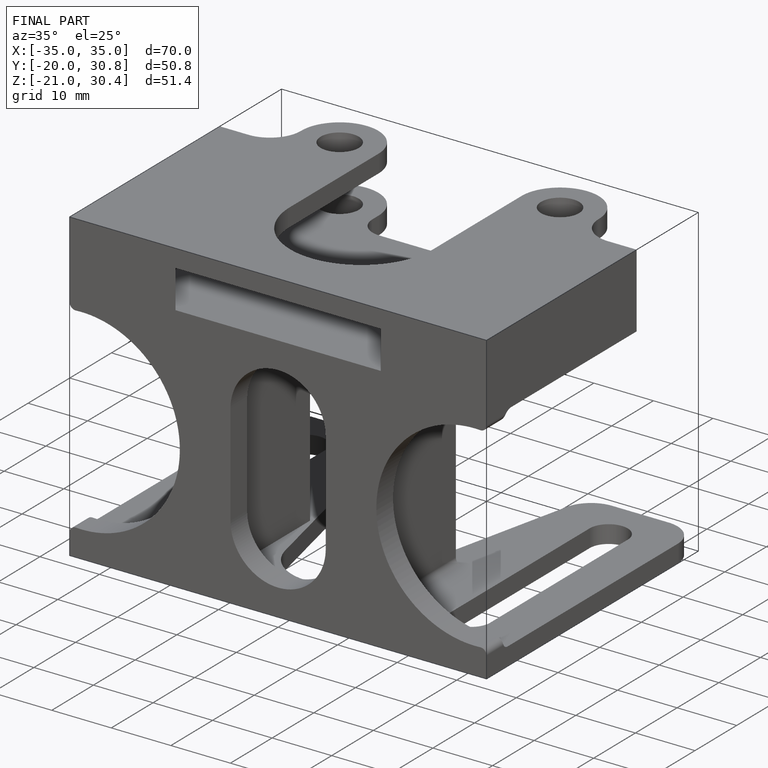
[diagram: finished part — iso view with bounding-box wireframe]
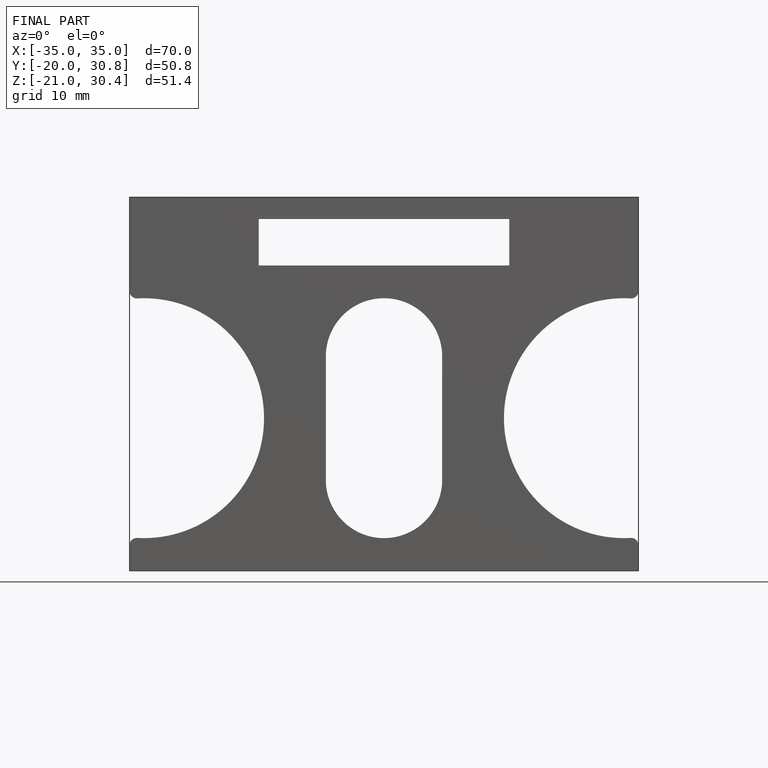
[diagram: finished part — front view with bounding-box wireframe]
